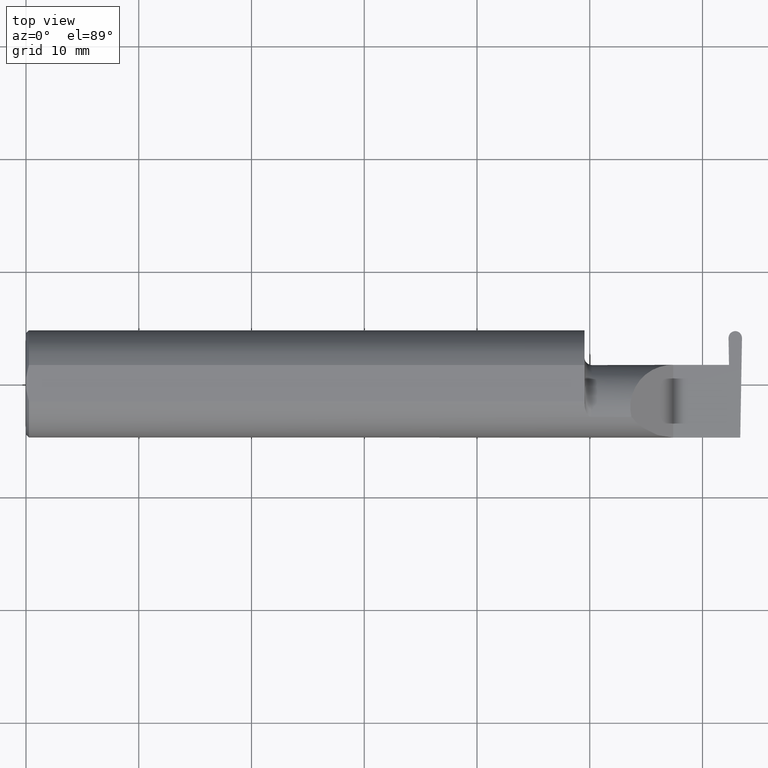
[diagram: clean part render]
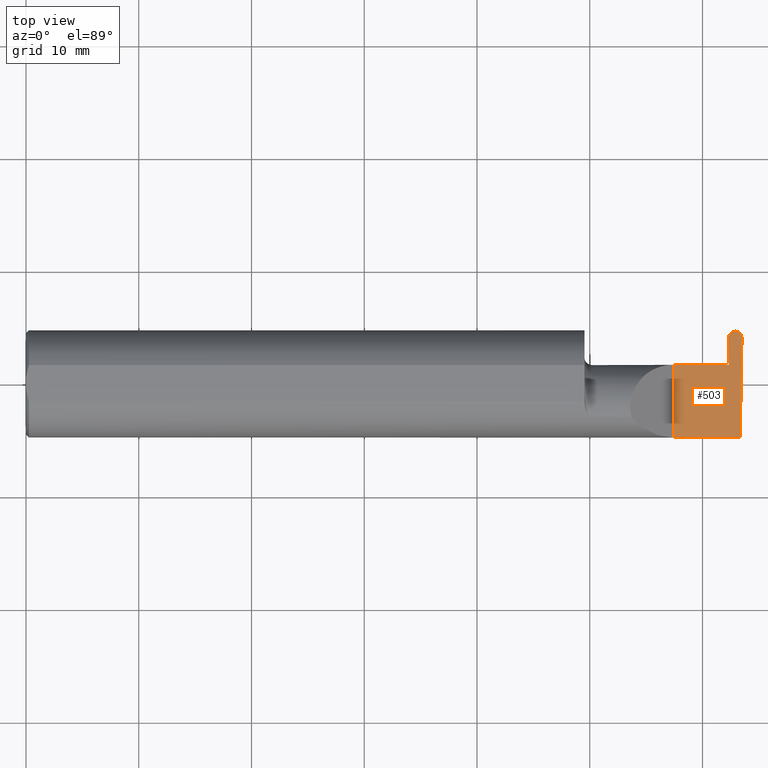
[diagram: same view with one face highlighted and labeled with its STEP entity id]
A machine part, top view. The second image highlights one B-rep face of the part: STEP entity #503.
In plain terms, the highlighted planar face has unit normal (-0, 0, -1).
Its self-contained STEP definition (entity closure, byte-faithful):
#5 = EDGE_CURVE ( 'NONE', #386, #101, #523, .T. ) ;
#7 = CARTESIAN_POINT ( 'NONE',  ( 2.260000000000000231, 0.06665000000000001479, 6.735557395310446214E-17 ) ) ;
#18 = VECTOR ( 'NONE', #570, 39.37007874015748143 ) ;
#22 = CARTESIAN_POINT ( 'NONE',  ( 2.260000000000000231, -0.2500000000000000555, 2.939152317953647352E-17 ) ) ;
#23 = ORIENTED_EDGE ( 'NONE', *, *, #430, .F. ) ;
#53 = DIRECTION ( 'NONE',  ( -0.01745240643727575397, -0.9998476951563912696, 0.000000000000000000 ) ) ;
#55 = DIRECTION ( 'NONE',  ( -1.000000000000000000, 0.000000000000000000, 1.224646799147353947E-16 ) ) ;
#63 = CARTESIAN_POINT ( 'NONE',  ( 2.452979680742863433, 0.1597972350660649132, 0.000000000000000000 ) ) ;
#72 = ORIENTED_EDGE ( 'NONE', *, *, #605, .T. ) ;
#78 = EDGE_LOOP ( 'NONE', ( #86, #72, #663, #23, #496, #623, #530, #514, #292 ) ) ;
#84 = LINE ( 'NONE', #22, #697 ) ;
#86 = ORIENTED_EDGE ( 'NONE', *, *, #500, .F. ) ;
#96 = VERTEX_POINT ( 'NONE', #222 ) ;
#101 = VERTEX_POINT ( 'NONE', #220 ) ;
#102 = DIRECTION ( 'NONE',  ( 1.000000000000000000, 3.394713289407038742E-17, 0.000000000000000000 ) ) ;
#136 = CARTESIAN_POINT ( 'NONE',  ( 2.499980319257137484, 0.1597972350660649132, 0.000000000000000000 ) ) ;
#148 = CARTESIAN_POINT ( 'NONE',  ( 2.490599447477928052, 0.1846499999999998420, -1.730980851401792408E-18 ) ) ;
#160 = CARTESIAN_POINT ( 'NONE',  ( 2.493920841729410753, -0.1873499999999999888, 0.000000000000000000 ) ) ;
#182 = CARTESIAN_POINT ( 'NONE',  ( -0.001039370078740541395, 0.1846500000000000363, 0.000000000000000000 ) ) ;
#183 = VERTEX_POINT ( 'NONE', #499 ) ;
#201 = CARTESIAN_POINT ( 'NONE',  ( 1.949999999999999956, 0.06665000000000001479, 6.735557395310446214E-17 ) ) ;
#220 = CARTESIAN_POINT ( 'NONE',  ( 2.476759731742398163, 0.1846500000000000363, 0.000000000000000000 ) ) ;
#222 = CARTESIAN_POINT ( 'NONE',  ( 2.476200268257601422, 0.1846500000000000363, 0.000000000000000000 ) ) ;
#232 = VERTEX_POINT ( 'NONE', #347 ) ;
#235 = LINE ( 'NONE', #400, #18 ) ;
#248 = CARTESIAN_POINT ( 'NONE',  ( 2.499980319257137484, 0.1597972350660649132, 0.000000000000000000 ) ) ;
#267 = VERTEX_POINT ( 'NONE', #364 ) ;
#284 = LINE ( 'NONE', #677, #418 ) ;
#287 = CARTESIAN_POINT ( 'NONE',  ( 2.452963582209922055, 0.1607195194005952010, 0.000000000000000000 ) ) ;
#288 = EDGE_CURVE ( 'NONE', #635, #267, #648, .T. ) ;
#291 = DIRECTION ( 'NONE',  ( -0.000000000000000000, 1.000000000000000000, -0.000000000000000000 ) ) ;
#292 = ORIENTED_EDGE ( 'NONE', *, *, #5, .T. ) ;
#305 = CARTESIAN_POINT ( 'NONE',  ( 2.500234130889192219, 0.1743380937279880583, -2.910889271442051666E-18 ) ) ;
#307 = FACE_OUTER_BOUND ( 'NONE', #78, .T. ) ;
#312 = CARTESIAN_POINT ( 'NONE',  ( 2.500000000000000000, -0.2500000000000000555, 0.000000000000000000 ) ) ;
#347 = CARTESIAN_POINT ( 'NONE',  ( 2.452979680742863433, 0.1597972350660649132, 0.000000000000000000 ) ) ;
#352 = LINE ( 'NONE', #287, #536 ) ;
#364 = CARTESIAN_POINT ( 'NONE',  ( 2.447545874117295739, 0.06664999999999991764, 0.000000000000000000 ) ) ;
#379 = AXIS2_PLACEMENT_3D ( 'NONE', #312, #436, #55 ) ;
#386 = VERTEX_POINT ( 'NONE', #136 ) ;
#400 = CARTESIAN_POINT ( 'NONE',  ( 2.454605571778825102, 0.06664999999999998703, 0.000000000000000000 ) ) ;
#402 = EDGE_CURVE ( 'NONE', #645, #232, #352, .T. ) ;
#418 = VECTOR ( 'NONE', #464, 39.37007874015748143 ) ;
#423 = PLANE ( 'NONE',  #379 ) ;
#430 = EDGE_CURVE ( 'NONE', #267, #645, #235, .T. ) ;
#436 = DIRECTION ( 'NONE',  ( -1.224646799147353947E-16, 0.000000000000000000, -1.000000000000000000 ) ) ;
#439 = EDGE_CURVE ( 'NONE', #629, #183, #284, .T. ) ;
#440 = CARTESIAN_POINT ( 'NONE',  ( 2.454605571778825102, 0.06664999999999998703, 0.000000000000000000 ) ) ;
#445 = VECTOR ( 'NONE', #53, 39.37007874015748854 ) ;
#464 = DIRECTION ( 'NONE',  ( -1.000000000000000000, -0.000000000000000000, -0.000000000000000000 ) ) ;
#486 = EDGE_CURVE ( 'NONE', #183, #635, #84, .T. ) ;
#496 = ORIENTED_EDGE ( 'NONE', *, *, #288, .F. ) ;
#499 = CARTESIAN_POINT ( 'NONE',  ( 2.260000000000000231, -0.1873499999999999888, 2.939152317953647352E-17 ) ) ;
#500 = EDGE_CURVE ( 'NONE', #96, #101, #683, .T. ) ;
#503 = ADVANCED_FACE ( 'NONE', ( #307 ), #423, .F. ) ;
#509 = CARTESIAN_POINT ( 'NONE',  ( 2.476200268257601422, 0.1846500000000000363, 0.000000000000000000 ) ) ;
#514 = ORIENTED_EDGE ( 'NONE', *, *, #614, .F. ) ;
#518 = LINE ( 'NONE', #545, #445 ) ;
#523 =( BOUNDED_CURVE ( )  B_SPLINE_CURVE ( 3, ( #248, #305, #148, #647 ),
 .UNSPECIFIED., .F., .T. ) 
 B_SPLINE_CURVE_WITH_KNOTS ( ( 4, 4 ),
 ( 1.683182027770901534, 3.259781963246008996 ),
 .UNSPECIFIED. ) 
 CURVE ( )  GEOMETRIC_REPRESENTATION_ITEM ( )  RATIONAL_B_SPLINE_CURVE ( ( 1.000000000000000000, 0.8033679476376978101, 0.8033679476376978101, 1.000000000000000000 ) ) 
 REPRESENTATION_ITEM ( '' )  );
#530 = ORIENTED_EDGE ( 'NONE', *, *, #439, .F. ) ;
#536 = VECTOR ( 'NONE', #585, 39.37007874015748143 ) ;
#545 = CARTESIAN_POINT ( 'NONE',  ( 2.499996417790078862, 0.1607195194005952565, 0.000000000000000000 ) ) ;
#551 = CARTESIAN_POINT ( 'NONE',  ( 2.452725869110807366, 0.1743380937279880860, 1.998493923184369948E-17 ) ) ;
#555 =( BOUNDED_CURVE ( )  B_SPLINE_CURVE ( 3, ( #509, #582, #551, #63 ),
 .UNSPECIFIED., .F., .F. ) 
 B_SPLINE_CURVE_WITH_KNOTS ( ( 4, 4 ),
 ( 6.164995997523367244, 7.741595932998476925 ),
 .UNSPECIFIED. ) 
 CURVE ( )  GEOMETRIC_REPRESENTATION_ITEM ( )  RATIONAL_B_SPLINE_CURVE ( ( 1.000000000000000000, 0.8033679476376971440, 0.8033679476376971440, 1.000000000000000000 ) ) 
 REPRESENTATION_ITEM ( '' )  );
#570 = DIRECTION ( 'NONE',  ( 1.000000000000000000, 9.674096982053045718E-15, -0.000000000000000000 ) ) ;
#582 = CARTESIAN_POINT ( 'NONE',  ( 2.462360552522071089, 0.1846499999999998420, 1.880503081180344446E-17 ) ) ;
#585 = DIRECTION ( 'NONE',  ( -0.01745240643727800564, 0.9998476951563912696, -0.000000000000000000 ) ) ;
#593 = DIRECTION ( 'NONE',  ( 1.000000000000000000, -0.000000000000000000, -0.000000000000000000 ) ) ;
#605 = EDGE_CURVE ( 'NONE', #96, #232, #555, .T. ) ;
#609 = VECTOR ( 'NONE', #593, 39.37007874015748143 ) ;
#614 = EDGE_CURVE ( 'NONE', #386, #629, #518, .T. ) ;
#623 = ORIENTED_EDGE ( 'NONE', *, *, #486, .F. ) ;
#629 = VERTEX_POINT ( 'NONE', #160 ) ;
#635 = VERTEX_POINT ( 'NONE', #7 ) ;
#645 = VERTEX_POINT ( 'NONE', #440 ) ;
#647 = CARTESIAN_POINT ( 'NONE',  ( 2.476759731742398163, 0.1846500000000000363, 0.000000000000000000 ) ) ;
#648 = LINE ( 'NONE', #201, #705 ) ;
#663 = ORIENTED_EDGE ( 'NONE', *, *, #402, .F. ) ;
#677 = CARTESIAN_POINT ( 'NONE',  ( 3.749399456654646757E-32, -0.1873499999999999610, 3.061616997868383634E-16 ) ) ;
#683 = LINE ( 'NONE', #182, #609 ) ;
#697 = VECTOR ( 'NONE', #291, 39.37007874015748143 ) ;
#705 = VECTOR ( 'NONE', #102, 39.37007874015748143 ) ;